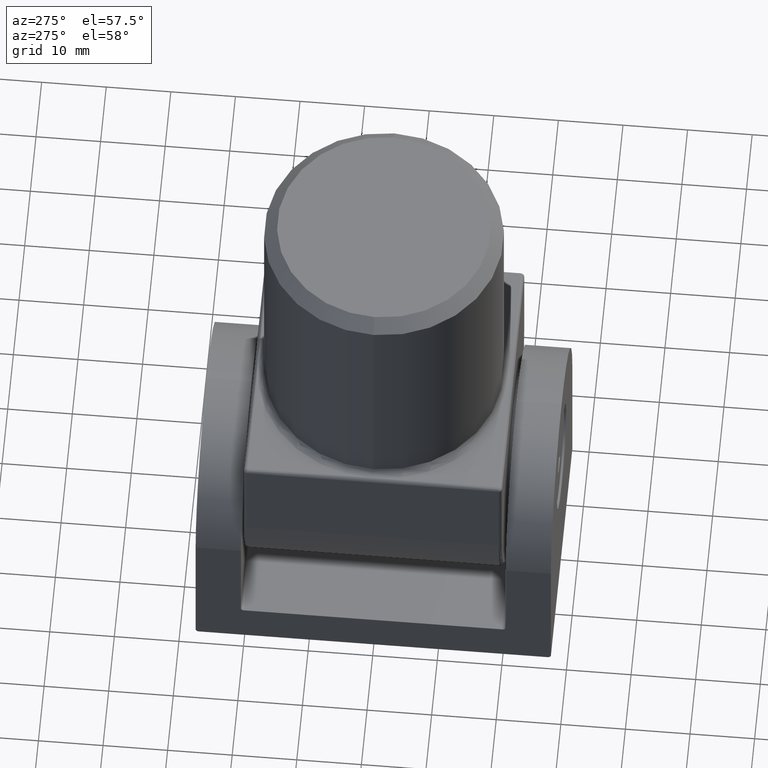
[diagram: clean part render]
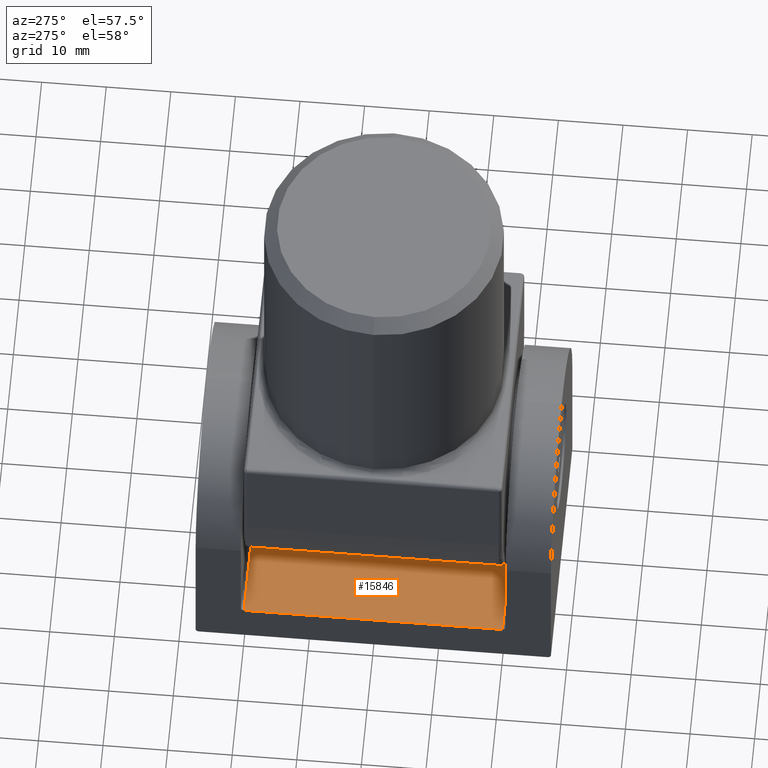
[diagram: same view with one face highlighted and labeled with its STEP entity id]
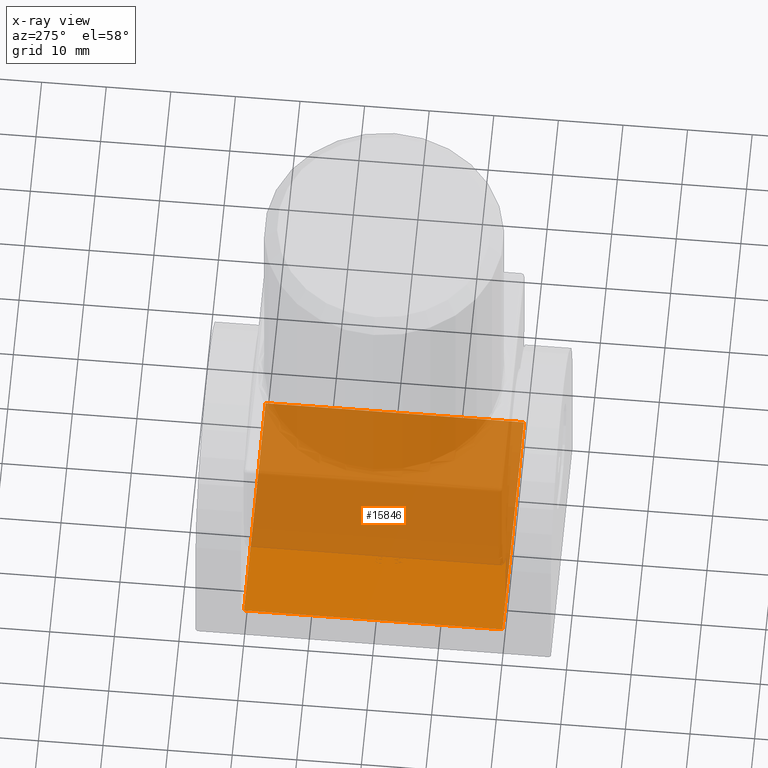
[diagram: x-ray of the same camera — body ghosted, the highlighted face saturated]
A machine part, auxiliary view. The second image highlights one B-rep face of the part: STEP entity #15846.
The next image is the same camera in x-ray: the body ghosted, the highlighted face saturated — about 69% of this face is hidden behind the body in this view.
In plain terms, the highlighted planar face has unit normal (0, 0, -1).
Its self-contained STEP definition (entity closure, byte-faithful):
#487 = EDGE_CURVE ( 'NONE', #10644, #16123, #3998, .T. ) ;
#778 = CARTESIAN_POINT ( 'NONE',  ( 19.00000000000000000, 20.50000000000000000, 6.999999999999991118 ) ) ;
#831 = FACE_OUTER_BOUND ( 'NONE', #2090, .T. ) ;
#838 = DIRECTION ( 'NONE',  ( 0.000000000000000000, -1.000000000000000000, 0.000000000000000000 ) ) ;
#863 = ORIENTED_EDGE ( 'NONE', *, *, #487, .F. ) ;
#2090 = EDGE_LOOP ( 'NONE', ( #863, #18609, #10102, #12954 ) ) ;
#2500 = VERTEX_POINT ( 'NONE', #11780 ) ;
#2700 = EDGE_CURVE ( 'NONE', #14698, #2500, #12064, .T. ) ;
#3344 = VECTOR ( 'NONE', #5101, 1000.000000000000000 ) ;
#3998 = LINE ( 'NONE', #778, #8712 ) ;
#5101 = DIRECTION ( 'NONE',  ( -1.000000000000000000, 0.000000000000000000, 0.000000000000000000 ) ) ;
#5365 = DIRECTION ( 'NONE',  ( 0.000000000000000000, 0.000000000000000000, -1.000000000000000000 ) ) ;
#5462 = DIRECTION ( 'NONE',  ( 0.000000000000000000, -1.000000000000000000, 0.000000000000000000 ) ) ;
#5493 = PLANE ( 'NONE',  #15381 ) ;
#6750 = CARTESIAN_POINT ( 'NONE',  ( 19.00000000000000000, 20.50000000000000000, 6.999999999999991118 ) ) ;
#7972 = EDGE_CURVE ( 'NONE', #2500, #16123, #17172, .T. ) ;
#8083 = EDGE_CURVE ( 'NONE', #10644, #14698, #16716, .T. ) ;
#8712 = VECTOR ( 'NONE', #838, 1000.000000000000000 ) ;
#8865 = CARTESIAN_POINT ( 'NONE',  ( 19.00000000000000000, -20.00000000000000000, 6.999999999999991118 ) ) ;
#9629 = CARTESIAN_POINT ( 'NONE',  ( -19.00000000000000000, 20.50000000000000000, 6.999999999999991118 ) ) ;
#9837 = DIRECTION ( 'NONE',  ( -1.000000000000000000, 0.000000000000000000, -0.000000000000000000 ) ) ;
#10102 = ORIENTED_EDGE ( 'NONE', *, *, #2700, .T. ) ;
#10644 = VERTEX_POINT ( 'NONE', #17656 ) ;
#11280 = VECTOR ( 'NONE', #16378, 1000.000000000000000 ) ;
#11607 = VECTOR ( 'NONE', #5462, 1000.000000000000000 ) ;
#11780 = CARTESIAN_POINT ( 'NONE',  ( -19.00000000000000000, -20.00000000000000000, 6.999999999999991118 ) ) ;
#12064 = LINE ( 'NONE', #9629, #11607 ) ;
#12954 = ORIENTED_EDGE ( 'NONE', *, *, #7972, .T. ) ;
#13342 = CARTESIAN_POINT ( 'NONE',  ( 19.00000000000000000, -20.00000000000000000, 6.999999999999991118 ) ) ;
#14339 = CARTESIAN_POINT ( 'NONE',  ( -19.00000000000000000, 20.00000000000000000, 6.999999999999991118 ) ) ;
#14698 = VERTEX_POINT ( 'NONE', #14339 ) ;
#15098 = CARTESIAN_POINT ( 'NONE',  ( -19.00000000000000000, 20.00000000000000000, 6.999999999999991118 ) ) ;
#15381 = AXIS2_PLACEMENT_3D ( 'NONE', #6750, #5365, #9837 ) ;
#15846 = ADVANCED_FACE ( 'NONE', ( #831 ), #5493, .F. ) ;
#16123 = VERTEX_POINT ( 'NONE', #8865 ) ;
#16378 = DIRECTION ( 'NONE',  ( 1.000000000000000000, -0.000000000000000000, -0.000000000000000000 ) ) ;
#16716 = LINE ( 'NONE', #15098, #3344 ) ;
#17172 = LINE ( 'NONE', #13342, #11280 ) ;
#17656 = CARTESIAN_POINT ( 'NONE',  ( 19.00000000000000000, 20.00000000000000000, 6.999999999999991118 ) ) ;
#18609 = ORIENTED_EDGE ( 'NONE', *, *, #8083, .T. ) ;